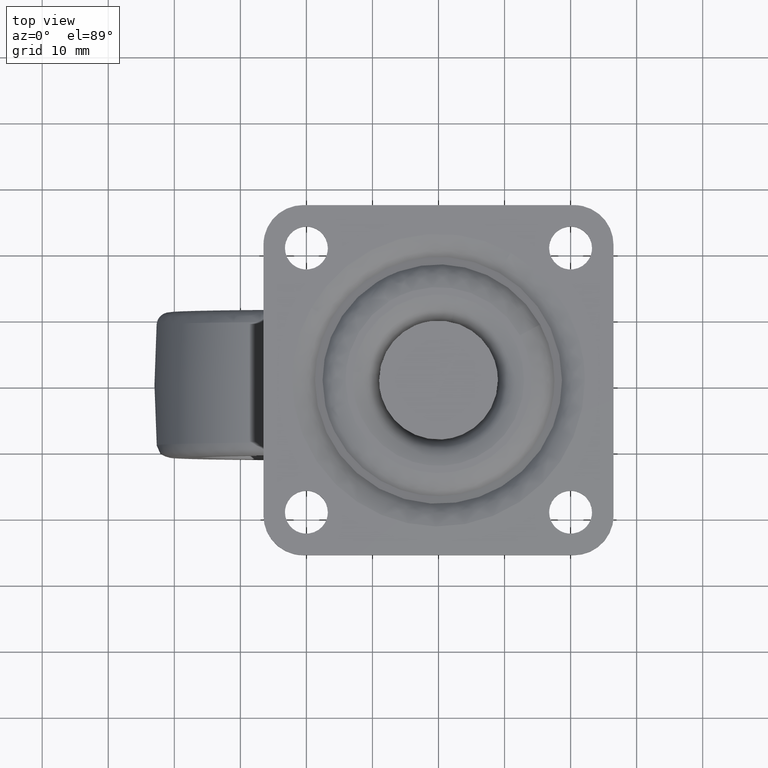
[diagram: clean part render]
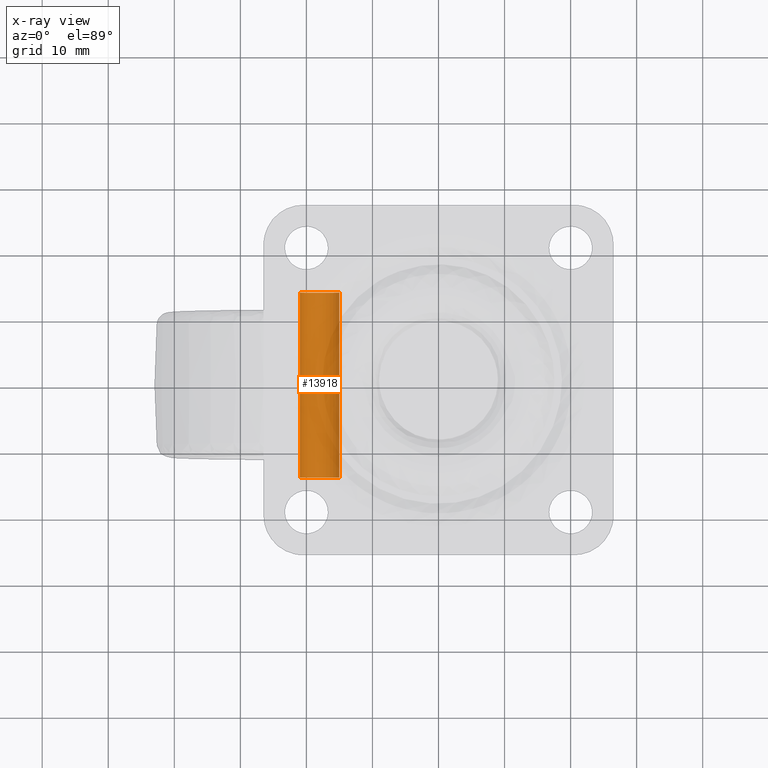
[diagram: x-ray — body ghosted, one internal face saturated and labeled with its STEP entity id]
A machine part, top view, then the same camera in x-ray: the body is ghosted and one INTERNAL B-rep face — a face not visible from any outside direction — is saturated and labeled: STEP entity #13918.
In plain terms, the highlighted face is a freeform B-spline surface patch.
Its self-contained STEP definition (entity closure, byte-faithful):
#13816=CARTESIAN_POINT('',(-15.020971420909005,-14.700000000000008,-42.645600296029734));
#13817=CARTESIAN_POINT('',(-15.010837153654183,-14.700000000000001,-42.730858814086069));
#13818=CARTESIAN_POINT('',(-15.005595604734401,-14.699999999999999,-42.816557381395427));
#13819=CARTESIAN_POINT('',(-14.822449986129829,-14.699999999999999,-45.810961776661024));
#13820=CARTESIAN_POINT('',(-17.816854381395430,-14.699999999999999,-45.994107395265587));
#13821=CARTESIAN_POINT('',(-20.811258776661031,-14.699999999999999,-46.177253013870171));
#13822=CARTESIAN_POINT('',(-20.994404395265601,-14.699999999999999,-43.182848618604567));
#13823=CARTESIAN_POINT('',(-15.020971420909005,14.717500000000003,-42.645600296029734));
#13824=CARTESIAN_POINT('',(-15.010837153654183,14.717499999999999,-42.730858814086069));
#13825=CARTESIAN_POINT('',(-15.005595604734401,14.717499999999999,-42.816557381395427));
#13826=CARTESIAN_POINT('',(-14.822449986129829,14.717499999999996,-45.810961776661024));
#13827=CARTESIAN_POINT('',(-17.816854381395430,14.717499999999999,-45.994107395265587));
#13828=CARTESIAN_POINT('',(-20.811258776661031,14.717499999999996,-46.177253013870171));
#13829=CARTESIAN_POINT('',(-20.994404395265601,14.717499999999999,-43.182848618604567));
#13837=(BOUNDED_SURFACE()B_SPLINE_SURFACE(2,1,((#13816,#13823),(#13817,#13824),(#13818,#13825),(#13819,#13826),(#13820,#13827),(#13821,#13828),(#13822,#13829)),.UNSPECIFIED.,.F.,.F.,.U.)B_SPLINE_SURFACE_WITH_KNOTS((3,2,2,3),(2,2),(0.0,0.198822509939086,5.169385258416217,10.139948006893350),(0.0,29.417500000000011),.UNSPECIFIED.)GEOMETRIC_REPRESENTATION_ITEM()RATIONAL_B_SPLINE_SURFACE(((0.977505800795127,0.977505800795127),(0.988284271247462,0.988284271247462),(1.0,1.0),(0.707106781186548,0.707106781186548),(1.0,1.0),(0.707106781186548,0.707106781186548),(1.0,1.0)))REPRESENTATION_ITEM('')SURFACE());
#13838=CARTESIAN_POINT('',(-15.020971420914730,14.0,-42.645600295981502));
#13839=VERTEX_POINT('',#13838);
#13840=CARTESIAN_POINT('',(-18.0,14.0,-45.999702999999997));
#13841=VERTEX_POINT('',#13840);
#13842=CARTESIAN_POINT('',(-15.020971420914737,13.999999999999998,-42.645600295981495));
#13843=CARTESIAN_POINT('',(-15.000000000000004,14.000000000000002,-42.822030640995521));
#13844=CARTESIAN_POINT('',(-15.0,14.0,-42.999702999999997));
#13845=CARTESIAN_POINT('',(-14.999999999999995,13.999999999999998,-45.999702999999997));
#13846=CARTESIAN_POINT('',(-18.0,14.0,-45.999702999999997));
#13854=(BOUNDED_CURVE()B_SPLINE_CURVE(2,(#13842,#13843,#13844,#13845,#13846),.UNSPECIFIED.,.F.,.U.)B_SPLINE_CURVE_WITH_KNOTS((3,2,3),(0.229562473510172,0.250000000000000,0.500000000000000),.UNSPECIFIED.)CURVE()GEOMETRIC_REPRESENTATION_ITEM()RATIONAL_B_SPLINE_CURVE((0.956026754177160,0.976055948327236,1.0,0.707106781186548,1.0))REPRESENTATION_ITEM(''));
#13855=EDGE_CURVE('',#13839,#13841,#13854,.T.);
#13856=ORIENTED_EDGE('',*,*,#13855,.F.);
#13857=CARTESIAN_POINT('',(-15.020971420914730,-14.0,-42.645600295981502));
#13858=VERTEX_POINT('',#13857);
#13859=CARTESIAN_POINT('',(-15.020971420914730,-14.0,-42.645600295981502));
#13860=CARTESIAN_POINT('',(-15.020971420914730,14.0,-42.645600295981502));
#13861=QUASI_UNIFORM_CURVE('',1,(#13859,#13860),.UNSPECIFIED.,.F.,.U.);
#13862=EDGE_CURVE('',#13858,#13839,#13861,.T.);
#13863=ORIENTED_EDGE('',*,*,#13862,.F.);
#13864=CARTESIAN_POINT('',(-18.0,-14.0,-45.999702999999997));
#13865=VERTEX_POINT('',#13864);
#13866=CARTESIAN_POINT('',(-15.020971420914730,-14.000000000000002,-42.645600295981488));
#13867=CARTESIAN_POINT('',(-15.0,-13.999999999999998,-42.822030640995521));
#13868=CARTESIAN_POINT('',(-15.0,-14.0,-42.999702999999997));
#13869=CARTESIAN_POINT('',(-14.999999999999995,-13.999999999999998,-45.999702999999997));
#13870=CARTESIAN_POINT('',(-18.0,-14.0,-45.999702999999997));
#13878=(BOUNDED_CURVE()B_SPLINE_CURVE(2,(#13866,#13867,#13868,#13869,#13870),.UNSPECIFIED.,.F.,.U.)B_SPLINE_CURVE_WITH_KNOTS((3,2,3),(0.229562473510172,0.250000000000000,0.500000000000000),.UNSPECIFIED.)CURVE()GEOMETRIC_REPRESENTATION_ITEM()RATIONAL_B_SPLINE_CURVE((0.956026754177161,0.976055948327237,1.0,0.707106781186548,1.0))REPRESENTATION_ITEM(''));
#13879=EDGE_CURVE('',#13858,#13865,#13878,.T.);
#13880=ORIENTED_EDGE('',*,*,#13879,.T.);
#13881=CARTESIAN_POINT('',(-20.994404395255319,-14.0,-43.182848618772567));
#13882=VERTEX_POINT('',#13881);
#13883=CARTESIAN_POINT('',(-18.0,-14.0,-45.999702999999997));
#13884=CARTESIAN_POINT('',(-20.822118200399824,-13.999999999999995,-45.999702999999982));
#13885=CARTESIAN_POINT('',(-20.994404395255319,-14.000000000000005,-43.182848618772567));
#13893=(BOUNDED_CURVE()B_SPLINE_CURVE(2,(#13883,#13884,#13885),.UNSPECIFIED.,.F.,.U.)B_SPLINE_CURVE_WITH_KNOTS((3,3),(0.500000000000000,0.739332962222607),.UNSPECIFIED.)CURVE()GEOMETRIC_REPRESENTATION_ITEM()RATIONAL_B_SPLINE_CURVE((1.0,0.719603993305849,0.976072041631707))REPRESENTATION_ITEM(''));
#13894=EDGE_CURVE('',#13865,#13882,#13893,.T.);
#13895=ORIENTED_EDGE('',*,*,#13894,.T.);
#13896=CARTESIAN_POINT('',(-20.994404395255319,14.0,-43.182848618772567));
#13897=VERTEX_POINT('',#13896);
#13898=CARTESIAN_POINT('',(-20.994404395255319,-14.0,-43.182848618772567));
#13899=CARTESIAN_POINT('',(-20.994404395255319,14.0,-43.182848618772567));
#13900=QUASI_UNIFORM_CURVE('',1,(#13898,#13899),.UNSPECIFIED.,.F.,.U.);
#13901=EDGE_CURVE('',#13882,#13897,#13900,.T.);
#13902=ORIENTED_EDGE('',*,*,#13901,.T.);
#13903=CARTESIAN_POINT('',(-18.0,14.0,-45.999702999999997));
#13904=CARTESIAN_POINT('',(-20.822118200399824,13.999999999999995,-45.999702999999982));
#13905=CARTESIAN_POINT('',(-20.994404395255319,14.000000000000005,-43.182848618772567));
#13913=(BOUNDED_CURVE()B_SPLINE_CURVE(2,(#13903,#13904,#13905),.UNSPECIFIED.,.F.,.U.)B_SPLINE_CURVE_WITH_KNOTS((3,3),(0.500000000000000,0.739332962222607),.UNSPECIFIED.)CURVE()GEOMETRIC_REPRESENTATION_ITEM()RATIONAL_B_SPLINE_CURVE((1.0,0.719603993305849,0.976072041631707))REPRESENTATION_ITEM(''));
#13914=EDGE_CURVE('',#13841,#13897,#13913,.T.);
#13915=ORIENTED_EDGE('',*,*,#13914,.F.);
#13916=EDGE_LOOP('',(#13856,#13863,#13880,#13895,#13902,#13915));
#13917=FACE_OUTER_BOUND('',#13916,.T.);
#13918=ADVANCED_FACE('',(#13917),#13837,.T.);